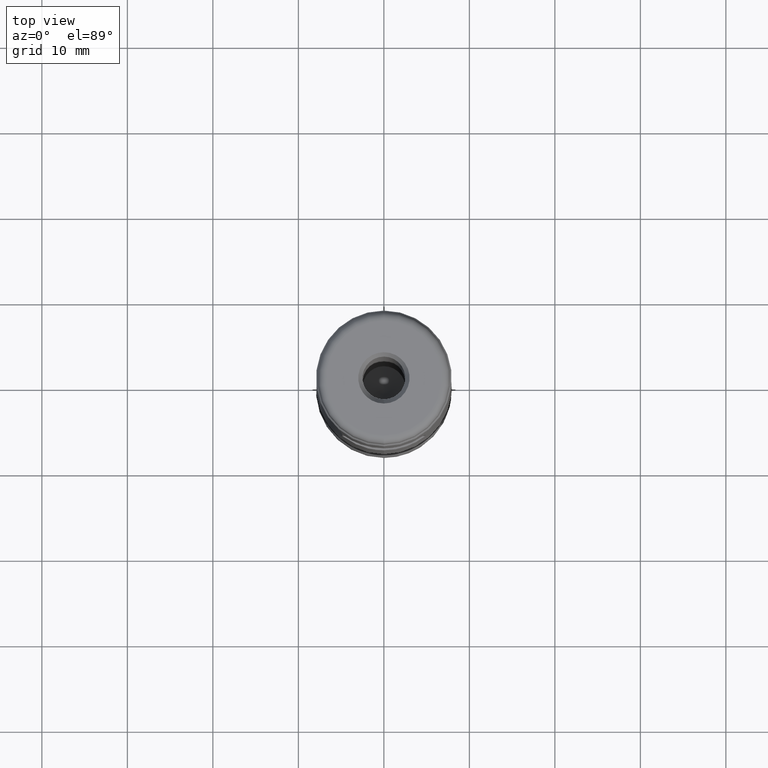
[diagram: clean part render]
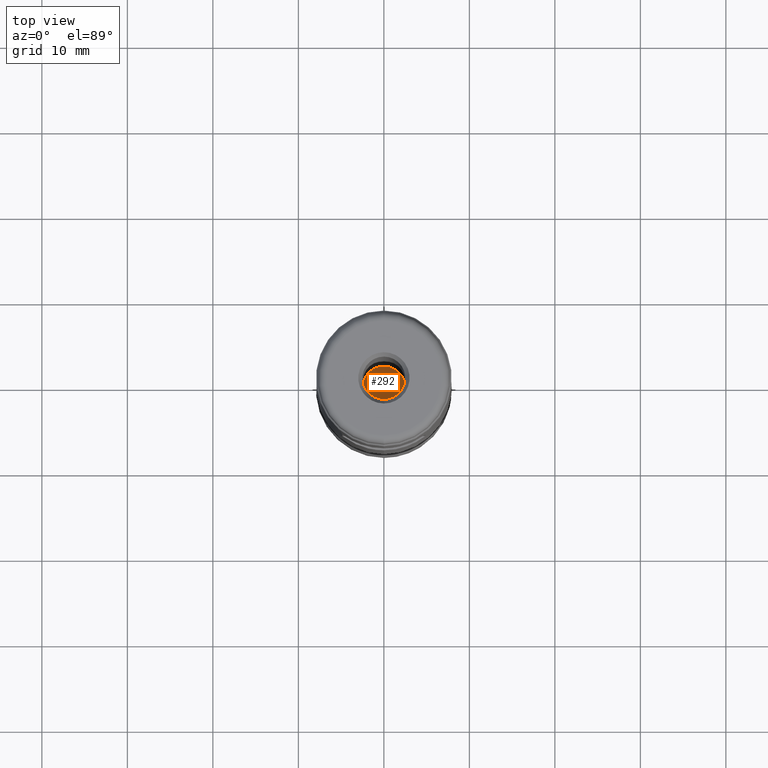
[diagram: same view with one face highlighted and labeled with its STEP entity id]
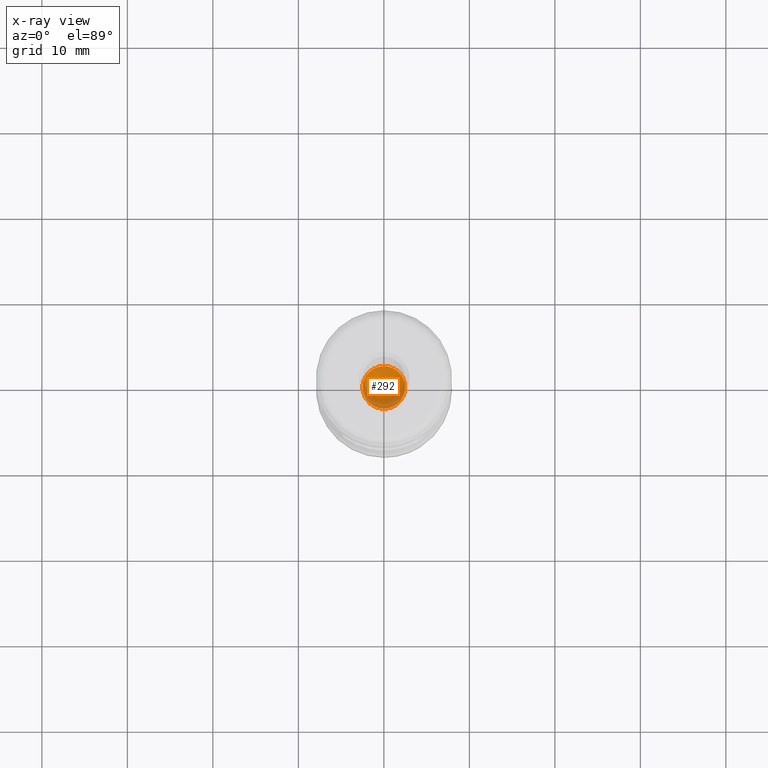
[diagram: x-ray of the same camera — body ghosted, the highlighted face saturated]
A machine part, top view. The second image highlights one B-rep face of the part: STEP entity #292.
The next image is the same camera in x-ray: the body ghosted, the highlighted face saturated — about 28% of this face is hidden behind the body in this view.
In plain terms, the highlighted conical surface has half-angle 59 deg.
Its self-contained STEP definition (entity closure, byte-faithful):
#152=VERTEX_LOOP('',#544);
#195=CONICAL_SURFACE('',#733,2.5,59.);
#228=FACE_BOUND('',#365,.T.);
#229=FACE_BOUND('',#152,.T.);
#292=ADVANCED_FACE('',(#228,#229),#195,.F.);
#365=EDGE_LOOP('',(#456));
#456=ORIENTED_EDGE('',*,*,#591,.T.);
#543=VERTEX_POINT('',#1253);
#544=VERTEX_POINT('',#1254);
#591=EDGE_CURVE('',#543,#543,#634,.T.);
#634=CIRCLE('',#732,2.5);
#732=AXIS2_PLACEMENT_3D('',#1252,#835,#836);
#733=AXIS2_PLACEMENT_3D('',#1255,#837,#838);
#835=DIRECTION('',(0.,1.17145536458252E-15,1.));
#836=DIRECTION('',(0.,1.,-1.38777878078145E-15));
#837=DIRECTION('',(0.,1.17145536458252E-15,1.));
#838=DIRECTION('',(0.,-1.,1.17398138243361E-15));
#1252=CARTESIAN_POINT('',(0.,2.05590416484233E-14,17.55));
#1253=CARTESIAN_POINT('',(0.,2.50000000000002,17.55));
#1254=CARTESIAN_POINT('',(0.,1.87993381596078E-14,16.0478484524311));
#1255=CARTESIAN_POINT('',(0.,2.05590416484233E-14,17.55));